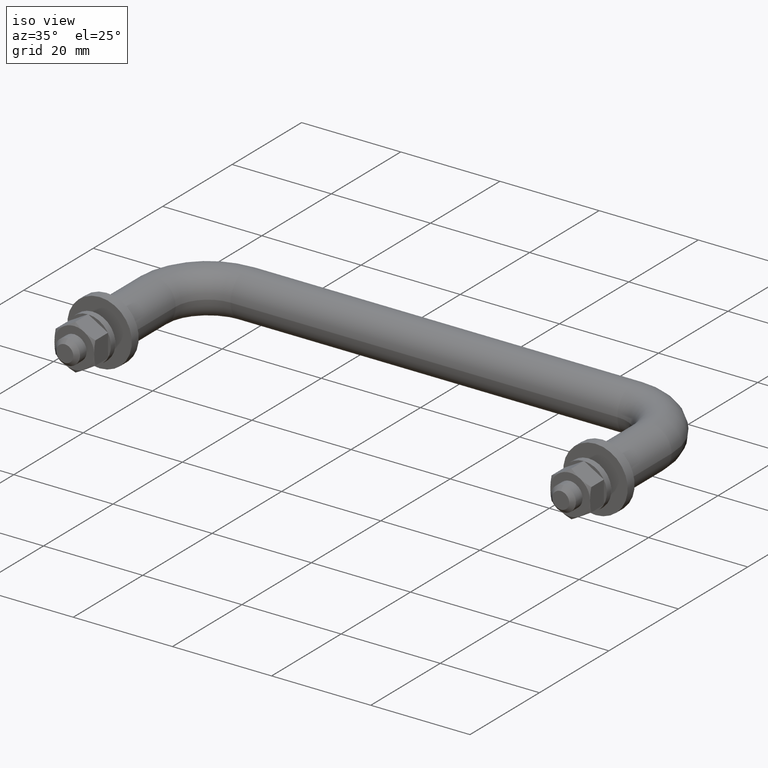
[diagram: clean part render]
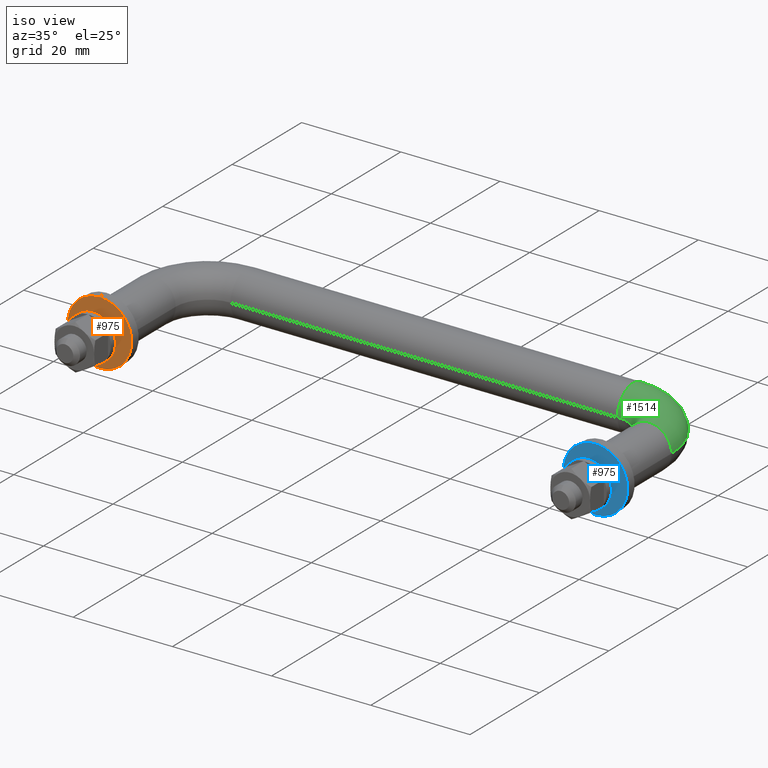
[diagram: same view with three faces highlighted in distinct colors, each labeled with its STEP entity id]
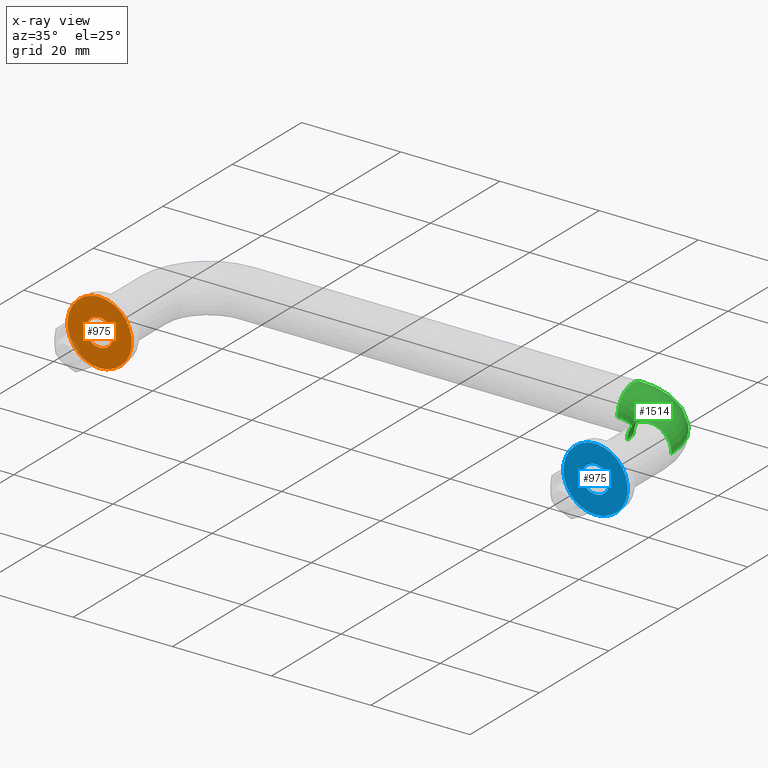
[diagram: x-ray of the same camera — body ghosted, the three highlighted faces saturated]
A machine part, iso view with three faces highlighted in distinct colors.
The next image is the same camera in x-ray (body ghosted, the three faces saturated) — at least one of them is partly hidden behind the body in this view.
Their STEP definitions:

[orange] entity #975 — the highlighted planar face has unit normal (0, 1, 0).
#51 = CARTESIAN_POINT ( 'NONE',  ( 4.898425415289510000E-016, 1.000000000000000000, -6.500000000000000000 ) ) ;
#143 = AXIS2_PLACEMENT_3D ( 'NONE', #1407, #587, #526 ) ;
#158 = CIRCLE ( 'NONE', #266, 6.500000000000000000 ) ;
#198 = DIRECTION ( 'NONE',  ( 0.0000000000000000000, -1.000000000000000000, 0.0000000000000000000 ) ) ;
#238 = VERTEX_POINT ( 'NONE', #590 ) ;
#242 = ORIENTED_EDGE ( 'NONE', *, *, #874, .F. ) ;
#260 = CARTESIAN_POINT ( 'NONE',  ( 4.898425415289510000E-016, 1.000000000000000000, -2.750000000000000000 ) ) ;
#266 = AXIS2_PLACEMENT_3D ( 'NONE', #932, #1764, #787 ) ;
#311 = CIRCLE ( 'NONE', #1600, 2.750000000000000000 ) ;
#342 = VERTEX_POINT ( 'NONE', #51 ) ;
#390 = FACE_OUTER_BOUND ( 'NONE', #682, .T. ) ;
#427 = VERTEX_POINT ( 'NONE', #260 ) ;
#460 = AXIS2_PLACEMENT_3D ( 'NONE', #489, #1443, #1159 ) ;
#483 = DIRECTION ( 'NONE',  ( 0.0000000000000000000, 0.0000000000000000000, -1.000000000000000000 ) ) ;
#489 = CARTESIAN_POINT ( 'NONE',  ( 4.898425415289510000E-016, 1.000000000000000000, 0.0000000000000000000 ) ) ;
#526 = DIRECTION ( 'NONE',  ( 0.0000000000000000000, 0.0000000000000000000, -1.000000000000000000 ) ) ;
#530 = EDGE_CURVE ( 'NONE', #427, #238, #311, .T. ) ;
#564 = EDGE_CURVE ( 'NONE', #238, #427, #1650, .T. ) ;
#587 = DIRECTION ( 'NONE',  ( 0.0000000000000000000, -1.000000000000000000, 0.0000000000000000000 ) ) ;
#590 = CARTESIAN_POINT ( 'NONE',  ( 8.266204112944731500E-016, 1.000000000000000000, 2.750000000000000000 ) ) ;
#646 = DIRECTION ( 'NONE',  ( 0.0000000000000000000, -1.000000000000000000, 0.0000000000000000000 ) ) ;
#663 = VERTEX_POINT ( 'NONE', #1456 ) ;
#673 = ORIENTED_EDGE ( 'NONE', *, *, #564, .T. ) ;
#682 = EDGE_LOOP ( 'NONE', ( #1612, #242 ) ) ;
#765 = DIRECTION ( 'NONE',  ( 0.0000000000000000000, 0.0000000000000000000, -1.000000000000000000 ) ) ;
#779 = ORIENTED_EDGE ( 'NONE', *, *, #530, .T. ) ;
#787 = DIRECTION ( 'NONE',  ( 0.0000000000000000000, 0.0000000000000000000, -1.000000000000000000 ) ) ;
#874 = EDGE_CURVE ( 'NONE', #663, #342, #158, .T. ) ;
#932 = CARTESIAN_POINT ( 'NONE',  ( 4.898425415289510000E-016, 1.000000000000000000, 0.0000000000000000000 ) ) ;
#975 = ADVANCED_FACE ( 'NONE', ( #390, #1083 ), #1183, .F. ) ;
#1017 = AXIS2_PLACEMENT_3D ( 'NONE', #1311, #646, #765 ) ;
#1083 = FACE_BOUND ( 'NONE', #1611, .T. ) ;
#1126 = EDGE_CURVE ( 'NONE', #342, #663, #1281, .T. ) ;
#1159 = DIRECTION ( 'NONE',  ( 0.0000000000000000000, 0.0000000000000000000, -1.000000000000000000 ) ) ;
#1183 = PLANE ( 'NONE',  #1017 ) ;
#1281 = CIRCLE ( 'NONE', #143, 6.500000000000000000 ) ;
#1311 = CARTESIAN_POINT ( 'NONE',  ( -2.750000000000000000, 1.000000000000000000, 0.0000000000000000000 ) ) ;
#1407 = CARTESIAN_POINT ( 'NONE',  ( 4.898425415289510000E-016, 1.000000000000000000, 0.0000000000000000000 ) ) ;
#1443 = DIRECTION ( 'NONE',  ( 0.0000000000000000000, -1.000000000000000000, 0.0000000000000000000 ) ) ;
#1456 = CARTESIAN_POINT ( 'NONE',  ( 1.285862960974730500E-015, 1.000000000000000000, 6.500000000000000000 ) ) ;
#1556 = CARTESIAN_POINT ( 'NONE',  ( 4.898425415289510000E-016, 1.000000000000000000, 0.0000000000000000000 ) ) ;
#1600 = AXIS2_PLACEMENT_3D ( 'NONE', #1556, #198, #483 ) ;
#1611 = EDGE_LOOP ( 'NONE', ( #779, #673 ) ) ;
#1612 = ORIENTED_EDGE ( 'NONE', *, *, #1126, .F. ) ;
#1650 = CIRCLE ( 'NONE', #460, 2.750000000000000000 ) ;
#1764 = DIRECTION ( 'NONE',  ( 0.0000000000000000000, -1.000000000000000000, 0.0000000000000000000 ) ) ;

[blue] entity #975 — the highlighted planar face has unit normal (0, 1, 0).
#51 = CARTESIAN_POINT ( 'NONE',  ( 4.898425415289510000E-016, 1.000000000000000000, -6.500000000000000000 ) ) ;
#143 = AXIS2_PLACEMENT_3D ( 'NONE', #1407, #587, #526 ) ;
#158 = CIRCLE ( 'NONE', #266, 6.500000000000000000 ) ;
#198 = DIRECTION ( 'NONE',  ( 0.0000000000000000000, -1.000000000000000000, 0.0000000000000000000 ) ) ;
#238 = VERTEX_POINT ( 'NONE', #590 ) ;
#242 = ORIENTED_EDGE ( 'NONE', *, *, #874, .F. ) ;
#260 = CARTESIAN_POINT ( 'NONE',  ( 4.898425415289510000E-016, 1.000000000000000000, -2.750000000000000000 ) ) ;
#266 = AXIS2_PLACEMENT_3D ( 'NONE', #932, #1764, #787 ) ;
#311 = CIRCLE ( 'NONE', #1600, 2.750000000000000000 ) ;
#342 = VERTEX_POINT ( 'NONE', #51 ) ;
#390 = FACE_OUTER_BOUND ( 'NONE', #682, .T. ) ;
#427 = VERTEX_POINT ( 'NONE', #260 ) ;
#460 = AXIS2_PLACEMENT_3D ( 'NONE', #489, #1443, #1159 ) ;
#483 = DIRECTION ( 'NONE',  ( 0.0000000000000000000, 0.0000000000000000000, -1.000000000000000000 ) ) ;
#489 = CARTESIAN_POINT ( 'NONE',  ( 4.898425415289510000E-016, 1.000000000000000000, 0.0000000000000000000 ) ) ;
#526 = DIRECTION ( 'NONE',  ( 0.0000000000000000000, 0.0000000000000000000, -1.000000000000000000 ) ) ;
#530 = EDGE_CURVE ( 'NONE', #427, #238, #311, .T. ) ;
#564 = EDGE_CURVE ( 'NONE', #238, #427, #1650, .T. ) ;
#587 = DIRECTION ( 'NONE',  ( 0.0000000000000000000, -1.000000000000000000, 0.0000000000000000000 ) ) ;
#590 = CARTESIAN_POINT ( 'NONE',  ( 8.266204112944731500E-016, 1.000000000000000000, 2.750000000000000000 ) ) ;
#646 = DIRECTION ( 'NONE',  ( 0.0000000000000000000, -1.000000000000000000, 0.0000000000000000000 ) ) ;
#663 = VERTEX_POINT ( 'NONE', #1456 ) ;
#673 = ORIENTED_EDGE ( 'NONE', *, *, #564, .T. ) ;
#682 = EDGE_LOOP ( 'NONE', ( #1612, #242 ) ) ;
#765 = DIRECTION ( 'NONE',  ( 0.0000000000000000000, 0.0000000000000000000, -1.000000000000000000 ) ) ;
#779 = ORIENTED_EDGE ( 'NONE', *, *, #530, .T. ) ;
#787 = DIRECTION ( 'NONE',  ( 0.0000000000000000000, 0.0000000000000000000, -1.000000000000000000 ) ) ;
#874 = EDGE_CURVE ( 'NONE', #663, #342, #158, .T. ) ;
#932 = CARTESIAN_POINT ( 'NONE',  ( 4.898425415289510000E-016, 1.000000000000000000, 0.0000000000000000000 ) ) ;
#975 = ADVANCED_FACE ( 'NONE', ( #390, #1083 ), #1183, .F. ) ;
#1017 = AXIS2_PLACEMENT_3D ( 'NONE', #1311, #646, #765 ) ;
#1083 = FACE_BOUND ( 'NONE', #1611, .T. ) ;
#1126 = EDGE_CURVE ( 'NONE', #342, #663, #1281, .T. ) ;
#1159 = DIRECTION ( 'NONE',  ( 0.0000000000000000000, 0.0000000000000000000, -1.000000000000000000 ) ) ;
#1183 = PLANE ( 'NONE',  #1017 ) ;
#1281 = CIRCLE ( 'NONE', #143, 6.500000000000000000 ) ;
#1311 = CARTESIAN_POINT ( 'NONE',  ( -2.750000000000000000, 1.000000000000000000, 0.0000000000000000000 ) ) ;
#1407 = CARTESIAN_POINT ( 'NONE',  ( 4.898425415289510000E-016, 1.000000000000000000, 0.0000000000000000000 ) ) ;
#1443 = DIRECTION ( 'NONE',  ( 0.0000000000000000000, -1.000000000000000000, 0.0000000000000000000 ) ) ;
#1456 = CARTESIAN_POINT ( 'NONE',  ( 1.285862960974730500E-015, 1.000000000000000000, 6.500000000000000000 ) ) ;
#1556 = CARTESIAN_POINT ( 'NONE',  ( 4.898425415289510000E-016, 1.000000000000000000, 0.0000000000000000000 ) ) ;
#1600 = AXIS2_PLACEMENT_3D ( 'NONE', #1556, #198, #483 ) ;
#1611 = EDGE_LOOP ( 'NONE', ( #779, #673 ) ) ;
#1612 = ORIENTED_EDGE ( 'NONE', *, *, #1126, .F. ) ;
#1650 = CIRCLE ( 'NONE', #460, 2.750000000000000000 ) ;
#1764 = DIRECTION ( 'NONE',  ( 0.0000000000000000000, -1.000000000000000000, 0.0000000000000000000 ) ) ;

[green] entity #1514 — the highlighted toroidal blend (fillet) surface has major radius 11 mm and minor (blend) radius 4.5 mm.
#74 = ORIENTED_EDGE ( 'NONE', *, *, #1547, .T. ) ;
#77 = EDGE_LOOP ( 'NONE', ( #442, #74, #1054, #376 ) ) ;
#108 = CARTESIAN_POINT ( 'NONE',  ( 39.00000000000002100, 30.00000000000001100, 0.0000000000000000000 ) ) ;
#177 = DIRECTION ( 'NONE',  ( -0.0000000000000000000, -0.0000000000000000000, -1.000000000000000000 ) ) ;
#284 = EDGE_CURVE ( 'NONE', #373, #1397, #1202, .T. ) ;
#330 = TOROIDAL_SURFACE ( 'NONE', #1223, 11.00000000000000000, 4.499999999999998200 ) ;
#341 = CARTESIAN_POINT ( 'NONE',  ( 50.00000000000001400, 14.49999999999999300, 0.0000000000000000000 ) ) ;
#354 = CIRCLE ( 'NONE', #1418, 15.49999999999999600 ) ;
#373 = VERTEX_POINT ( 'NONE', #1067 ) ;
#376 = ORIENTED_EDGE ( 'NONE', *, *, #284, .F. ) ;
#419 = DIRECTION ( 'NONE',  ( -0.0000000000000000000, -0.0000000000000000000, -1.000000000000000000 ) ) ;
#442 = ORIENTED_EDGE ( 'NONE', *, *, #476, .F. ) ;
#461 = DIRECTION ( 'NONE',  ( 0.0000000000000000000, 0.0000000000000000000, 1.000000000000000000 ) ) ;
#476 = EDGE_CURVE ( 'NONE', #912, #373, #354, .T. ) ;
#559 = DIRECTION ( 'NONE',  ( -1.000000000000000000, 0.0000000000000000000, 0.0000000000000000000 ) ) ;
#584 = DIRECTION ( 'NONE',  ( -1.000000000000000000, 0.0000000000000000000, 0.0000000000000000000 ) ) ;
#621 = DIRECTION ( 'NONE',  ( -0.0000000000000000000, -0.0000000000000000000, -1.000000000000000000 ) ) ;
#702 = VERTEX_POINT ( 'NONE', #968 ) ;
#750 = DIRECTION ( 'NONE',  ( 0.0000000000000000000, 0.0000000000000000000, 1.000000000000000000 ) ) ;
#756 = CARTESIAN_POINT ( 'NONE',  ( 39.00000000000001400, 14.50000000000001200, 0.0000000000000000000 ) ) ;
#840 = CIRCLE ( 'NONE', #930, 6.499999999999999100 ) ;
#883 = CARTESIAN_POINT ( 'NONE',  ( 39.00000000000002100, 25.50000000000001100, 0.0000000000000000000 ) ) ;
#912 = VERTEX_POINT ( 'NONE', #108 ) ;
#930 = AXIS2_PLACEMENT_3D ( 'NONE', #1149, #177, #584 ) ;
#948 = CARTESIAN_POINT ( 'NONE',  ( 45.50000000000002100, 14.49999999999999800, 5.510910596163087600E-016 ) ) ;
#968 = CARTESIAN_POINT ( 'NONE',  ( 39.00000000000002100, 21.00000000000001400, 5.510910596163087600E-016 ) ) ;
#1054 = ORIENTED_EDGE ( 'NONE', *, *, #1680, .T. ) ;
#1067 = CARTESIAN_POINT ( 'NONE',  ( 54.50000000000001400, 14.49999999999998600, 0.0000000000000000000 ) ) ;
#1130 = AXIS2_PLACEMENT_3D ( 'NONE', #883, #1724, #750 ) ;
#1149 = CARTESIAN_POINT ( 'NONE',  ( 39.00000000000001400, 14.50000000000001200, 5.510910596163086600E-016 ) ) ;
#1170 = AXIS2_PLACEMENT_3D ( 'NONE', #341, #1309, #461 ) ;
#1202 = CIRCLE ( 'NONE', #1170, 4.499999999999998200 ) ;
#1223 = AXIS2_PLACEMENT_3D ( 'NONE', #756, #621, #1447 ) ;
#1248 = CARTESIAN_POINT ( 'NONE',  ( 39.00000000000001400, 14.50000000000001200, 0.0000000000000000000 ) ) ;
#1309 = DIRECTION ( 'NONE',  ( -1.431847554560484000E-015, -1.000000000000000000, 0.0000000000000000000 ) ) ;
#1397 = VERTEX_POINT ( 'NONE', #948 ) ;
#1418 = AXIS2_PLACEMENT_3D ( 'NONE', #1248, #419, #559 ) ;
#1430 = FACE_OUTER_BOUND ( 'NONE', #77, .T. ) ;
#1447 = DIRECTION ( 'NONE',  ( -1.000000000000000000, 0.0000000000000000000, 0.0000000000000000000 ) ) ;
#1514 = ADVANCED_FACE ( 'NONE', ( #1430 ), #330, .T. ) ;
#1547 = EDGE_CURVE ( 'NONE', #912, #702, #1757, .T. ) ;
#1680 = EDGE_CURVE ( 'NONE', #702, #1397, #840, .T. ) ;
#1724 = DIRECTION ( 'NONE',  ( 1.000000000000000000, -3.828568698926949400E-016, 0.0000000000000000000 ) ) ;
#1757 = CIRCLE ( 'NONE', #1130, 4.499999999999998200 ) ;